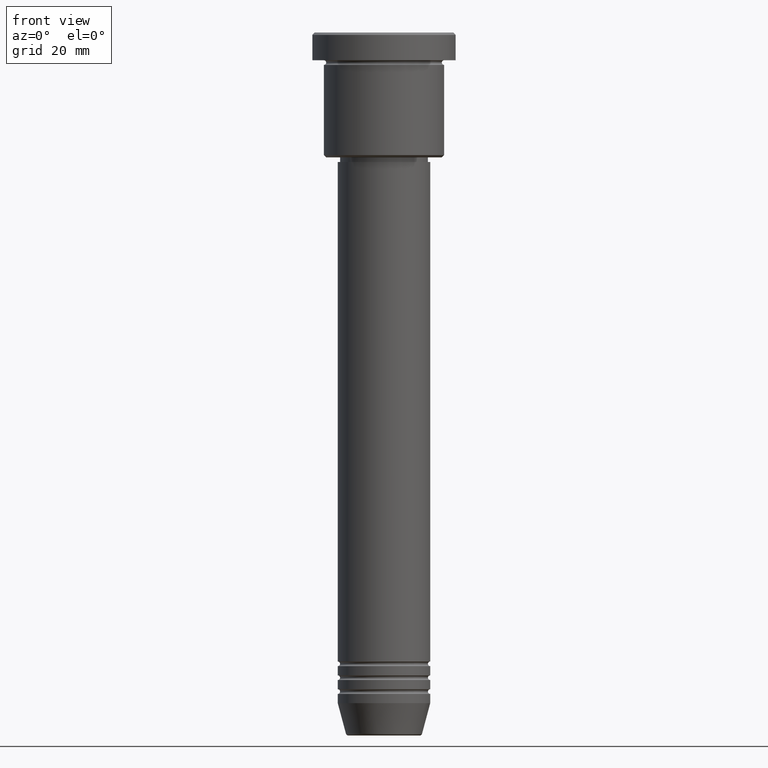
[diagram: clean part render]
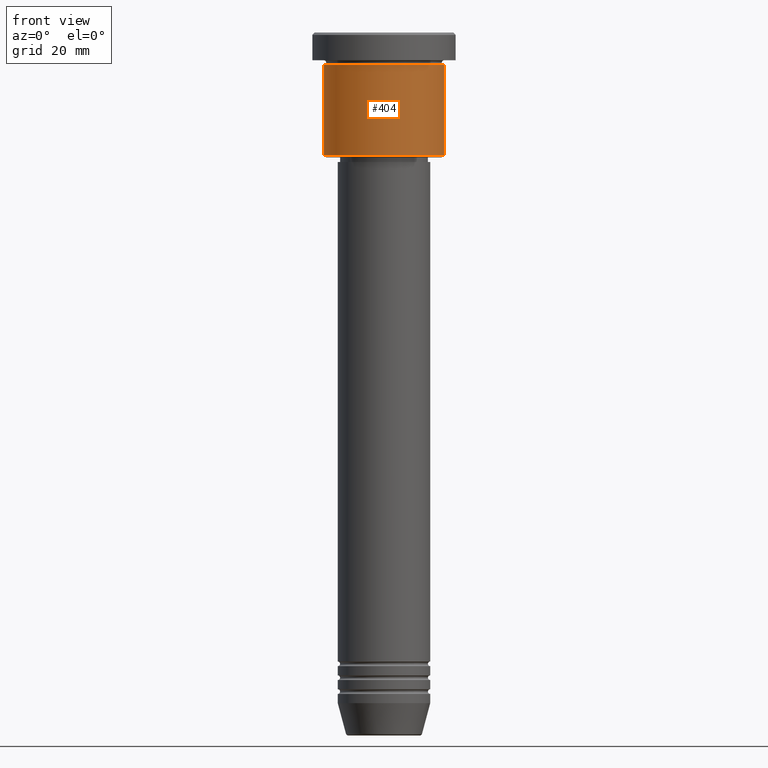
[diagram: same view with one face highlighted and labeled with its STEP entity id]
A machine part, front view. The second image highlights one B-rep face of the part: STEP entity #404.
In plain terms, the highlighted cylindrical surface (partial cylindrical patch) has radius 13 mm, axis along (-0, -0, 1).
Its self-contained STEP definition (entity closure, byte-faithful):
#5 = EDGE_CURVE ( 'NONE', #126, #978, #881, .T. ) ;
#124 = CARTESIAN_POINT ( 'NONE',  ( 0.000000000000000000, 0.000000000000000000, 0.000000000000000000 ) ) ;
#126 = VERTEX_POINT ( 'NONE', #1165 ) ;
#228 = FACE_OUTER_BOUND ( 'NONE', #915, .T. ) ;
#230 = DIRECTION ( 'NONE',  ( -0.000000000000000000, -0.000000000000000000, 1.000000000000000000 ) ) ;
#258 = ORIENTED_EDGE ( 'NONE', *, *, #5, .F. ) ;
#285 = DIRECTION ( 'NONE',  ( -0.000000000000000000, -0.000000000000000000, 1.000000000000000000 ) ) ;
#314 = CARTESIAN_POINT ( 'NONE',  ( -13.00000000000000000, 1.592040838891559095E-15, -26.49999999999994671 ) ) ;
#349 = ORIENTED_EDGE ( 'NONE', *, *, #483, .T. ) ;
#352 = DIRECTION ( 'NONE',  ( -0.000000000000000000, -0.000000000000000000, 1.000000000000000000 ) ) ;
#360 = AXIS2_PLACEMENT_3D ( 'NONE', #458, #467, #1112 ) ;
#377 = LINE ( 'NONE', #741, #995 ) ;
#378 = CARTESIAN_POINT ( 'NONE',  ( 13.00000000000000000, 0.000000000000000000, -6.999999999999995559 ) ) ;
#404 = ADVANCED_FACE ( 'NONE', ( #228 ), #589, .T. ) ;
#437 = AXIS2_PLACEMENT_3D ( 'NONE', #124, #230, #490 ) ;
#458 = CARTESIAN_POINT ( 'NONE',  ( 0.000000000000000000, 0.000000000000000000, -6.999999999999995559 ) ) ;
#467 = DIRECTION ( 'NONE',  ( -0.000000000000000000, -0.000000000000000000, 1.000000000000000000 ) ) ;
#483 = EDGE_CURVE ( 'NONE', #631, #978, #976, .T. ) ;
#490 = DIRECTION ( 'NONE',  ( 1.000000000000000000, 0.000000000000000000, 0.000000000000000000 ) ) ;
#562 = EDGE_CURVE ( 'NONE', #634, #631, #938, .T. ) ;
#589 = CYLINDRICAL_SURFACE ( 'NONE', #437, 13.00000000000000000 ) ;
#631 = VERTEX_POINT ( 'NONE', #1132 ) ;
#634 = VERTEX_POINT ( 'NONE', #314 ) ;
#687 = AXIS2_PLACEMENT_3D ( 'NONE', #987, #1057, #885 ) ;
#741 = CARTESIAN_POINT ( 'NONE',  ( -13.00000000000000000, 1.592040838891559095E-15, 0.000000000000000000 ) ) ;
#881 = CIRCLE ( 'NONE', #360, 13.00000000000000000 ) ;
#885 = DIRECTION ( 'NONE',  ( -1.000000000000000000, 0.000000000000000000, 0.000000000000000000 ) ) ;
#903 = CARTESIAN_POINT ( 'NONE',  ( 13.00000000000000000, 0.000000000000000000, 0.000000000000000000 ) ) ;
#915 = EDGE_LOOP ( 'NONE', ( #1061, #1166, #349, #258 ) ) ;
#938 = CIRCLE ( 'NONE', #687, 13.00000000000000000 ) ;
#976 = LINE ( 'NONE', #903, #1064 ) ;
#978 = VERTEX_POINT ( 'NONE', #378 ) ;
#987 = CARTESIAN_POINT ( 'NONE',  ( 0.000000000000000000, 0.000000000000000000, -26.49999999999994671 ) ) ;
#995 = VECTOR ( 'NONE', #285, 1000.000000000000000 ) ;
#1057 = DIRECTION ( 'NONE',  ( -0.000000000000000000, -0.000000000000000000, 1.000000000000000000 ) ) ;
#1061 = ORIENTED_EDGE ( 'NONE', *, *, #1102, .F. ) ;
#1064 = VECTOR ( 'NONE', #352, 1000.000000000000000 ) ;
#1102 = EDGE_CURVE ( 'NONE', #634, #126, #377, .T. ) ;
#1112 = DIRECTION ( 'NONE',  ( 1.000000000000000000, 0.000000000000000000, 0.000000000000000000 ) ) ;
#1132 = CARTESIAN_POINT ( 'NONE',  ( 13.00000000000000000, 0.000000000000000000, -26.49999999999994671 ) ) ;
#1165 = CARTESIAN_POINT ( 'NONE',  ( -13.00000000000000000, 1.592040838891559095E-15, -6.999999999999995559 ) ) ;
#1166 = ORIENTED_EDGE ( 'NONE', *, *, #562, .T. ) ;